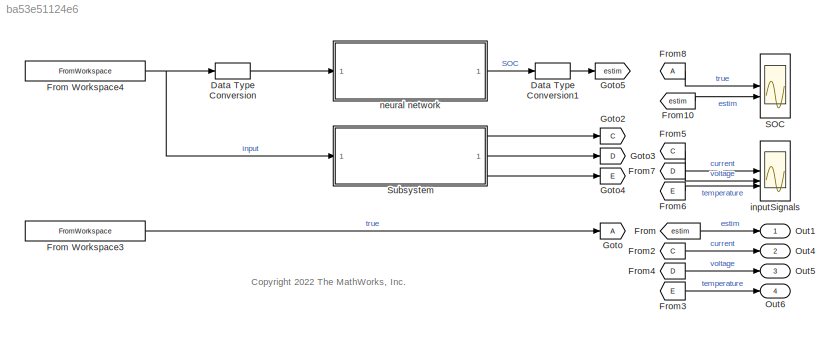
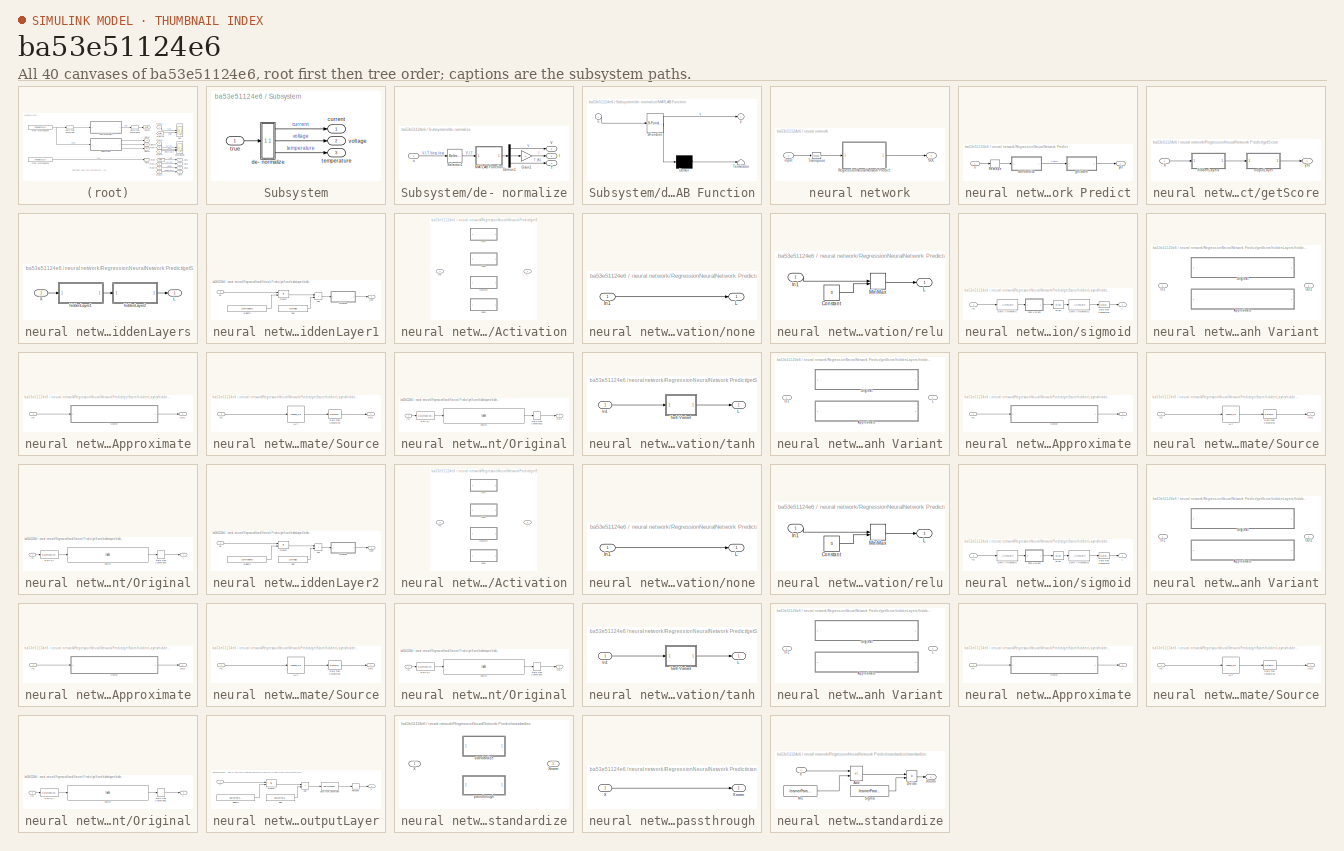
[diagram: thumbnail index - all 40 canvases of the model, root first then tree order]
MODEL slx_ba53e51124e6
KIND model
CONFIG AbsTol = auto
CONFIG EnableMultiTasking = off
CONFIG FixedStep = auto
CONFIG MaxStep = auto
CONFIG MinStep = auto
CONFIG RelTol = 1e-3
CONFIG SampleTimeConstraint = Unconstrained
CONFIG SolverName = VariableStepAuto
CONFIG StartTime = 0.0
CONFIG StopTime = 10.0
BLOCK [DataTypeConversion] Data Type Conversion
  OutDataTypeStr = fixdt(0,14,14)
  RndMeth = Floor
  SaturateOnIntegerOverflow = off
BLOCK [DataTypeConversion] Data Type Conversion1
  RndMeth = Floor
  SaturateOnIntegerOverflow = off
BLOCK [From] From
  GotoTag = estim
BLOCK [FromWorkspace] From Workspace3
  SampleTime = -1
  VariableName = measuredSOC
BLOCK [FromWorkspace] From Workspace4
  SampleTime = -1
  VariableName = input
BLOCK [From] From10
  GotoTag = estim
BLOCK [From] From2
  GotoTag = C
BLOCK [From] From3
  GotoTag = E
BLOCK [From] From4
  GotoTag = D
BLOCK [From] From5
  GotoTag = C
BLOCK [From] From6
  GotoTag = E
BLOCK [From] From7
  GotoTag = D
BLOCK [From] From8
BLOCK [Goto] Goto
BLOCK [Goto] Goto2
  GotoTag = C
BLOCK [Goto] Goto3
  GotoTag = D
BLOCK [Goto] Goto4
  GotoTag = E
BLOCK [Goto] Goto5
  GotoTag = estim
BLOCK [Outport] Out1
BLOCK [Outport] Out4
  Port = 2
BLOCK [Outport] Out5
  Port = 3
BLOCK [Outport] Out6
  Port = 4
BLOCK [Scope] SOC
  Floating = off
  NumInputPorts = 2
  ScopeSpecificationString = Simulink.scopes.TimeScopeBlockCfg('CurrentConfiguration', extmgr.ConfigurationSet(extmgr.Configuration('Core','General UI',true),extmgr.Configuration('Core','Source UI',true),extmgr.Configuration('Sources','WiredSimulink',true,'DataLoggingVariableName','ScopeData1'),extmgr.Configuration('Visuals','Time Domain',true,'SerializedDisplays',{struct('MinYLimReal','0.19312','MaxYLimReal','1.0941','YLabel...<+1464ch>
BLOCK [SubSystem] Subsystem
BLOCK [Outport] Subsystem/current
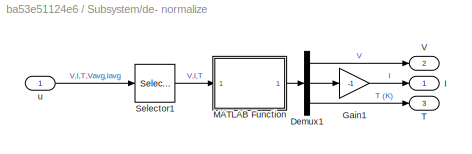
BLOCK [SubSystem] Subsystem/de- normalize
BLOCK [Demux] Subsystem/de- normalize/Demux1
  Outputs = 3
BLOCK [Gain] Subsystem/de- normalize/Gain1
  Gain = -1
BLOCK [Outport] Subsystem/de- normalize/I
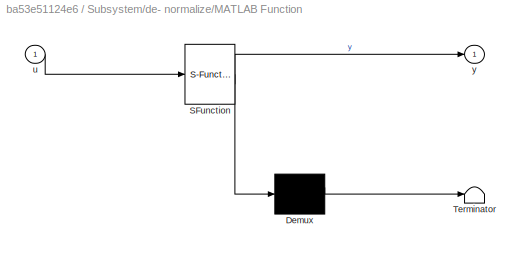
BLOCK [SubSystem] Subsystem/de- normalize/MATLAB Function
  ErrorFcn = Stateflow.Translate.translate
  PermitHierarchicalResolution = ExplicitOnly
  SFBlockType = MATLAB Function
  TreatAsAtomicUnit = on
BLOCK [Demux] Subsystem/de- normalize/MATLAB Function/ Demux 
  Outputs = 1
BLOCK [S-Function] Subsystem/de- normalize/MATLAB Function/ SFunction 
  EnableBusSupport = off
  FunctionName = sf_sfun
  Parameters = X_MAX,X_MIN
  PortCounts = [1 2]
  SFcnIsStateOwnerBlock = off
  SFunctionDeploymentMode = off
  Tag = Stateflow S-Function 3
BLOCK [Terminator] Subsystem/de- normalize/MATLAB Function/ Terminator 
BLOCK [Inport] Subsystem/de- normalize/MATLAB Function/u
BLOCK [Outport] Subsystem/de- normalize/MATLAB Function/y
BLOCK [Selector] Subsystem/de- normalize/Selector1
  IndexOptions = Index vector (dialog)
  Indices = [1 2 3]
  InputPortWidth = 5
  OutputSizes = 1
BLOCK [Outport] Subsystem/de- normalize/T
  Port = 3
BLOCK [Outport] Subsystem/de- normalize/V
  Port = 2
BLOCK [Inport] Subsystem/de- normalize/u
BLOCK [Outport] Subsystem/temperature
  Port = 3
BLOCK [Inport] Subsystem/true
BLOCK [Outport] Subsystem/voltage
  Port = 2
BLOCK [Scope] inputSignals
  Floating = off
  NumInputPorts = 3
  ScopeSpecificationString = Simulink.scopes.TimeScopeBlockCfg('CurrentConfiguration', extmgr.ConfigurationSet(extmgr.Configuration('Core','General UI',true),extmgr.Configuration('Core','Source UI',true),extmgr.Configuration('Sources','WiredSimulink',true),extmgr.Configuration('Visuals','Time Domain',true,'SerializedDisplays',{struct('MinYLimReal','-8.46176','MaxYLimReal','16.17474','YLabelReal','','MinYLimMag','0.00000','Max...<+2728ch>
BLOCK [SubSystem] neural network
  TreatAsAtomicUnit = on
BLOCK [SubSystem] neural network/RegressionNeuralNetwork Predict
  LibrarySourceBlock = statsLibrary/Regression/RegressionNeuralNetwork Predict
  TreatAsAtomicUnit = on
BLOCK [Reshape] neural network/RegressionNeuralNetwork Predict/Reshape
  OutputDimensionality = Row vector (2-D)
BLOCK [SubSystem] neural network/RegressionNeuralNetwork Predict/getScore
BLOCK [Inport] neural network/RegressionNeuralNetwork Predict/getScore/X
BLOCK [SubSystem] neural network/RegressionNeuralNetwork Predict/getScore/hiddenLayers
BLOCK [Outport] neural network/RegressionNeuralNetwork Predict/getScore/hiddenLayers/L
BLOCK [Inport] neural network/RegressionNeuralNetwork Predict/getScore/hiddenLayers/X
BLOCK [SubSystem] neural network/RegressionNeuralNetwork Predict/getScore/hiddenLayers/hiddenLayer1
  LibrarySourceBlock = sharedstatsblks/hiddenLayer
  VariantControl = Relu
BLOCK [SubSystem] neural network/RegressionNeuralNetwork Predict/getScore/hiddenLayers/hiddenLayer1/Activation
  LabelModeActiveChoice = relu
  Variant = on
  VariantControlMode = label
BLOCK [Inport] neural network/RegressionNeuralNetwork Predict/getScore/hiddenLayers/hiddenLayer1/Activation/In1
BLOCK [Outport] neural network/RegressionNeuralNetwork Predict/getScore/hiddenLayers/hiddenLayer1/Activation/L
BLOCK [SubSystem] neural network/RegressionNeuralNetwork Predict/getScore/hiddenLayers/hiddenLayer1/Activation/none
  VariantControl = none
BLOCK [Inport] neural network/RegressionNeuralNetwork Predict/getScore/hiddenLayers/hiddenLayer1/Activation/none/In1
BLOCK [Outport] neural network/RegressionNeuralNetwork Predict/getScore/hiddenLayers/hiddenLayer1/Activation/none/L
BLOCK [SubSystem] neural network/RegressionNeuralNetwork Predict/getScore/hiddenLayers/hiddenLayer1/Activation/relu
  VariantControl = relu
BLOCK [Constant] neural network/RegressionNeuralNetwork Predict/getScore/hiddenLayers/hiddenLayer1/Activation/relu/Constant
  OutDataTypeStr = Inherit: Inherit via back propagation
  Value = 0
BLOCK [Inport] neural network/RegressionNeuralNetwork Predict/getScore/hiddenLayers/hiddenLayer1/Activation/relu/In1
BLOCK [Outport] neural network/RegressionNeuralNetwork Predict/getScore/hiddenLayers/hiddenLayer1/Activation/relu/L
BLOCK [MinMax] neural network/RegressionNeuralNetwork Predict/getScore/hiddenLayers/hiddenLayer1/Activation/relu/MinMax
  Function = max
  Inputs = 2
  OutDataTypeStr = Inherit: Inherit via back propagation
BLOCK [SubSystem] neural network/RegressionNeuralNetwork Predict/getScore/hiddenLayers/hiddenLayer1/Activation/sigmoid
  VariantControl = sigmoid
BLOCK [Bias] neural network/RegressionNeuralNetwork Predict/getScore/hiddenLayers/hiddenLayer1/Activation/sigmoid/Bias
  Bias = 1
  SaturateOnIntegerOverflow = off
BLOCK [DataTypeConversion] neural network/RegressionNeuralNetwork Predict/getScore/hiddenLayers/hiddenLayer1/Activation/sigmoid/Data Type Conversion
  RndMeth = Floor
  SaturateOnIntegerOverflow = off
BLOCK [Inport] neural network/RegressionNeuralNetwork Predict/getScore/hiddenLayers/hiddenLayer1/Activation/sigmoid/In1
BLOCK [Outport] neural network/RegressionNeuralNetwork Predict/getScore/hiddenLayers/hiddenLayer1/Activation/sigmoid/L
BLOCK [ArithShift] neural network/RegressionNeuralNetwork Predict/getScore/hiddenLayers/hiddenLayer1/Activation/sigmoid/Shift Arithmetic
  BitShiftDirection = Right
  BitShiftNumber = 1
  InputPortMap = u0
BLOCK [ArithShift] neural network/RegressionNeuralNetwork Predict/getScore/hiddenLayers/hiddenLayer1/Activation/sigmoid/Shift Arithmetic1
  BitShiftDirection = Right
  BitShiftNumber = 1
  InputPortMap = u0
BLOCK [SubSystem] neural network/RegressionNeuralNetwork Predict/getScore/hiddenLayers/hiddenLayer1/Activation/sigmoid/Tanh Variant
  Variant = on
BLOCK [SubSystem] neural network/RegressionNeuralNetwork Predict/getScore/hiddenLayers/hiddenLayer1/Activation/sigmoid/Tanh Variant/Approximate
  Tag = Approximate
  VariantControl = LearnerParams.IsFxpt
BLOCK [Inport] neural network/RegressionNeuralNetwork Predict/getScore/hiddenLayers/hiddenLayer1/Activation/sigmoid/Tanh Variant/Approximate/In1
BLOCK [Outport] neural network/RegressionNeuralNetwork Predict/getScore/hiddenLayers/hiddenLayer1/Activation/sigmoid/Tanh Variant/Approximate/Out1
BLOCK [SubSystem] neural network/RegressionNeuralNetwork Predict/getScore/hiddenLayers/hiddenLayer1/Activation/sigmoid/Tanh Variant/Approximate/Source
  Description = This block was created using function approximation.
BLOCK [DataTypeConversion] neural network/RegressionNeuralNetwork Predict/getScore/hiddenLayers/hiddenLayer1/Activation/sigmoid/Tanh Variant/Approximate/Source/Data Type Conversion
  RndMeth = Floor
  SaturateOnIntegerOverflow = off
BLOCK [Inport] neural network/RegressionNeuralNetwork Predict/getScore/hiddenLayers/hiddenLayer1/Activation/sigmoid/Tanh Variant/Approximate/Source/In1
BLOCK [Lookup_n-D] neural network/RegressionNeuralNetwork Predict/getScore/hiddenLayers/hiddenLayer1/Activation/sigmoid/Tanh Variant/Approximate/Source/LUT
  BreakpointsForDimension1 = LearnerParams.TanhLUT.BreakPoints
  BreakpointsForDimension1DataTypeStr = numerictype(1,8,5)
  BreakpointsForDimension3 = [5, 7]
  ExtrapMethod = Clip
  InputPortMap = u0
  InputSameDT = off
  InternalRulePriority = Speed
  LookupTableObject = FunctionApproximation_LUTObject_20210329T002800015
  NumberOfTableDimensions = 1
  OutDataTypeStr = numerictype(1,16,14)
  Table = LearnerParams.TanhLUT.TableData
  TableDataTypeStr = numerictype(1,16,15)
  UseLastTableValue = on
BLOCK [Outport] neural network/RegressionNeuralNetwork Predict/getScore/hiddenLayers/hiddenLayer1/Activation/sigmoid/Tanh Variant/Approximate/Source/Out1
BLOCK [Inport] neural network/RegressionNeuralNetwork Predict/getScore/hiddenLayers/hiddenLayer1/Activation/sigmoid/Tanh Variant/In1
BLOCK [SubSystem] neural network/RegressionNeuralNetwork Predict/getScore/hiddenLayers/hiddenLayer1/Activation/sigmoid/Tanh Variant/Original
  Tag = Original
  VariantControl = ~LearnerParams.IsFxpt
BLOCK [DataTypeConversion] neural network/RegressionNeuralNetwork Predict/getScore/hiddenLayers/hiddenLayer1/Activation/sigmoid/Tanh Variant/Original/DTCIn_1
  OutDataTypeStr = double
  RndMeth = Floor
  SaturateOnIntegerOverflow = off
BLOCK [DataTypeConversion] neural network/RegressionNeuralNetwork Predict/getScore/hiddenLayers/hiddenLayer1/Activation/sigmoid/Tanh Variant/Original/Data Type Conversion1
  RndMeth = Floor
  SaturateOnIntegerOverflow = off
BLOCK [Inport] neural network/RegressionNeuralNetwork Predict/getScore/hiddenLayers/hiddenLayer1/Activation/sigmoid/Tanh Variant/Original/In1
BLOCK [Outport] neural network/RegressionNeuralNetwork Predict/getScore/hiddenLayers/hiddenLayer1/Activation/sigmoid/Tanh Variant/Original/Out1
BLOCK [Trigonometry] neural network/RegressionNeuralNetwork Predict/getScore/hiddenLayers/hiddenLayer1/Activation/sigmoid/Tanh Variant/Original/Source
  Operator = tanh
BLOCK [Outport] neural network/RegressionNeuralNetwork Predict/getScore/hiddenLayers/hiddenLayer1/Activation/sigmoid/Tanh Variant/Out1
BLOCK [SubSystem] neural network/RegressionNeuralNetwork Predict/getScore/hiddenLayers/hiddenLayer1/Activation/tanh
  VariantControl = tanh
BLOCK [Inport] neural network/RegressionNeuralNetwork Predict/getScore/hiddenLayers/hiddenLayer1/Activation/tanh/In1
BLOCK [Outport] neural network/RegressionNeuralNetwork Predict/getScore/hiddenLayers/hiddenLayer1/Activation/tanh/L
BLOCK [SubSystem] neural network/RegressionNeuralNetwork Predict/getScore/hiddenLayers/hiddenLayer1/Activation/tanh/Tanh Variant
  Variant = on
BLOCK [SubSystem] neural network/RegressionNeuralNetwork Predict/getScore/hiddenLayers/hiddenLayer1/Activation/tanh/Tanh Variant/Approximate
  Tag = Approximate
  VariantControl = LearnerParams.IsFxpt
BLOCK [Inport] neural network/RegressionNeuralNetwork Predict/getScore/hiddenLayers/hiddenLayer1/Activation/tanh/Tanh Variant/Approximate/In1
BLOCK [Outport] neural network/RegressionNeuralNetwork Predict/getScore/hiddenLayers/hiddenLayer1/Activation/tanh/Tanh Variant/Approximate/L
BLOCK [SubSystem] neural network/RegressionNeuralNetwork Predict/getScore/hiddenLayers/hiddenLayer1/Activation/tanh/Tanh Variant/Approximate/Source
  Description = This block was created using function approximation.
BLOCK [DataTypeConversion] neural network/RegressionNeuralNetwork Predict/getScore/hiddenLayers/hiddenLayer1/Activation/tanh/Tanh Variant/Approximate/Source/Data Type Conversion
  RndMeth = Floor
  SaturateOnIntegerOverflow = off
BLOCK [Inport] neural network/RegressionNeuralNetwork Predict/getScore/hiddenLayers/hiddenLayer1/Activation/tanh/Tanh Variant/Approximate/Source/In1
BLOCK [Lookup_n-D] neural network/RegressionNeuralNetwork Predict/getScore/hiddenLayers/hiddenLayer1/Activation/tanh/Tanh Variant/Approximate/Source/LUT
  BreakpointsForDimension1 = LearnerParams.TanhLUT.BreakPoints
  BreakpointsForDimension1DataTypeStr = numerictype(1,8,5)
  BreakpointsForDimension3 = [5, 7]
  ExtrapMethod = Clip
  InputPortMap = u0
  InputSameDT = off
  InternalRulePriority = Speed
  LookupTableObject = FunctionApproximation_LUTObject_20210329T002800015
  NumberOfTableDimensions = 1
  OutDataTypeStr = numerictype(1,16,15)
  Table = LearnerParams.TanhLUT.TableData
  TableDataTypeStr = numerictype(1,16,15)
  UseLastTableValue = on
BLOCK [Outport] neural network/RegressionNeuralNetwork Predict/getScore/hiddenLayers/hiddenLayer1/Activation/tanh/Tanh Variant/Approximate/Source/Out1
BLOCK [Inport] neural network/RegressionNeuralNetwork Predict/getScore/hiddenLayers/hiddenLayer1/Activation/tanh/Tanh Variant/In1
BLOCK [Outport] neural network/RegressionNeuralNetwork Predict/getScore/hiddenLayers/hiddenLayer1/Activation/tanh/Tanh Variant/L
BLOCK [SubSystem] neural network/RegressionNeuralNetwork Predict/getScore/hiddenLayers/hiddenLayer1/Activation/tanh/Tanh Variant/Original
  Tag = Original
  VariantControl = ~LearnerParams.IsFxpt
BLOCK [DataTypeConversion] neural network/RegressionNeuralNetwork Predict/getScore/hiddenLayers/hiddenLayer1/Activation/tanh/Tanh Variant/Original/DTCIn_1
  OutDataTypeStr = double
  RndMeth = Floor
  SaturateOnIntegerOverflow = off
BLOCK [DataTypeConversion] neural network/RegressionNeuralNetwork Predict/getScore/hiddenLayers/hiddenLayer1/Activation/tanh/Tanh Variant/Original/Data Type Conversion1
  RndMeth = Floor
  SaturateOnIntegerOverflow = off
BLOCK [Inport] neural network/RegressionNeuralNetwork Predict/getScore/hiddenLayers/hiddenLayer1/Activation/tanh/Tanh Variant/Original/In1
BLOCK [Outport] neural network/RegressionNeuralNetwork Predict/getScore/hiddenLayers/hiddenLayer1/Activation/tanh/Tanh Variant/Original/L
BLOCK [Trigonometry] neural network/RegressionNeuralNetwork Predict/getScore/hiddenLayers/hiddenLayer1/Activation/tanh/Tanh Variant/Original/Source
  Operator = tanh
BLOCK [Sum] neural network/RegressionNeuralNetwork Predict/getScore/hiddenLayers/hiddenLayer1/Add
  IconShape = rectangular
  OutDataTypeStr = Layer1AdditionDataTypeStr
  OutMax = AdditionOutMax
  OutMin = AdditionOutMin
BLOCK [Inport] neural network/RegressionNeuralNetwork Predict/getScore/hiddenLayers/hiddenLayer1/Lin
BLOCK [Outport] neural network/RegressionNeuralNetwork Predict/getScore/hiddenLayers/hiddenLayer1/Lout
  OutMax = ActivationOutMax
  OutMin = ActivationOutMin
BLOCK [Product] neural network/RegressionNeuralNetwork Predict/getScore/hiddenLayers/hiddenLayer1/Product
  Multiplication = Matrix(*)
  OutDataTypeStr = Layer1DataTypeStr
  OutMax = LayerProductOutMax
  OutMin = LayerProductOutMin
BLOCK [Constant] neural network/RegressionNeuralNetwork Predict/getScore/hiddenLayers/hiddenLayer1/bias
  Value = LayerBias
BLOCK [Constant] neural network/RegressionNeuralNetwork Predict/getScore/hiddenLayers/hiddenLayer1/weights
  Value = LayerWeights
  VectorParams1D = off
BLOCK [SubSystem] neural network/RegressionNeuralNetwork Predict/getScore/hiddenLayers/hiddenLayer2
  LibrarySourceBlock = sharedstatsblks/hiddenLayer
  VariantControl = Relu
BLOCK [SubSystem] neural network/RegressionNeuralNetwork Predict/getScore/hiddenLayers/hiddenLayer2/Activation
  LabelModeActiveChoice = relu
  Variant = on
  VariantControlMode = label
BLOCK [Inport] neural network/RegressionNeuralNetwork Predict/getScore/hiddenLayers/hiddenLayer2/Activation/In1
BLOCK [Outport] neural network/RegressionNeuralNetwork Predict/getScore/hiddenLayers/hiddenLayer2/Activation/L
BLOCK [SubSystem] neural network/RegressionNeuralNetwork Predict/getScore/hiddenLayers/hiddenLayer2/Activation/none
  VariantControl = none
BLOCK [Inport] neural network/RegressionNeuralNetwork Predict/getScore/hiddenLayers/hiddenLayer2/Activation/none/In1
BLOCK [Outport] neural network/RegressionNeuralNetwork Predict/getScore/hiddenLayers/hiddenLayer2/Activation/none/L
BLOCK [SubSystem] neural network/RegressionNeuralNetwork Predict/getScore/hiddenLayers/hiddenLayer2/Activation/relu
  VariantControl = relu
BLOCK [Constant] neural network/RegressionNeuralNetwork Predict/getScore/hiddenLayers/hiddenLayer2/Activation/relu/Constant
  OutDataTypeStr = Inherit: Inherit via back propagation
  Value = 0
BLOCK [Inport] neural network/RegressionNeuralNetwork Predict/getScore/hiddenLayers/hiddenLayer2/Activation/relu/In1
BLOCK [Outport] neural network/RegressionNeuralNetwork Predict/getScore/hiddenLayers/hiddenLayer2/Activation/relu/L
BLOCK [MinMax] neural network/RegressionNeuralNetwork Predict/getScore/hiddenLayers/hiddenLayer2/Activation/relu/MinMax
  Function = max
  Inputs = 2
  OutDataTypeStr = Inherit: Inherit via back propagation
BLOCK [SubSystem] neural network/RegressionNeuralNetwork Predict/getScore/hiddenLayers/hiddenLayer2/Activation/sigmoid
  VariantControl = sigmoid
BLOCK [Bias] neural network/RegressionNeuralNetwork Predict/getScore/hiddenLayers/hiddenLayer2/Activation/sigmoid/Bias
  Bias = 1
  SaturateOnIntegerOverflow = off
BLOCK [DataTypeConversion] neural network/RegressionNeuralNetwork Predict/getScore/hiddenLayers/hiddenLayer2/Activation/sigmoid/Data Type Conversion
  RndMeth = Floor
  SaturateOnIntegerOverflow = off
BLOCK [Inport] neural network/RegressionNeuralNetwork Predict/getScore/hiddenLayers/hiddenLayer2/Activation/sigmoid/In1
BLOCK [Outport] neural network/RegressionNeuralNetwork Predict/getScore/hiddenLayers/hiddenLayer2/Activation/sigmoid/L
BLOCK [ArithShift] neural network/RegressionNeuralNetwork Predict/getScore/hiddenLayers/hiddenLayer2/Activation/sigmoid/Shift Arithmetic
  BitShiftDirection = Right
  BitShiftNumber = 1
  InputPortMap = u0
BLOCK [ArithShift] neural network/RegressionNeuralNetwork Predict/getScore/hiddenLayers/hiddenLayer2/Activation/sigmoid/Shift Arithmetic1
  BitShiftDirection = Right
  BitShiftNumber = 1
  InputPortMap = u0
BLOCK [SubSystem] neural network/RegressionNeuralNetwork Predict/getScore/hiddenLayers/hiddenLayer2/Activation/sigmoid/Tanh Variant
  Variant = on
BLOCK [SubSystem] neural network/RegressionNeuralNetwork Predict/getScore/hiddenLayers/hiddenLayer2/Activation/sigmoid/Tanh Variant/Approximate
  Tag = Approximate
  VariantControl = LearnerParams.IsFxpt
BLOCK [Inport] neural network/RegressionNeuralNetwork Predict/getScore/hiddenLayers/hiddenLayer2/Activation/sigmoid/Tanh Variant/Approximate/In1
BLOCK [Outport] neural network/RegressionNeuralNetwork Predict/getScore/hiddenLayers/hiddenLayer2/Activation/sigmoid/Tanh Variant/Approximate/Out1
BLOCK [SubSystem] neural network/RegressionNeuralNetwork Predict/getScore/hiddenLayers/hiddenLayer2/Activation/sigmoid/Tanh Variant/Approximate/Source
  Description = This block was created using function approximation.
BLOCK [DataTypeConversion] neural network/RegressionNeuralNetwork Predict/getScore/hiddenLayers/hiddenLayer2/Activation/sigmoid/Tanh Variant/Approximate/Source/Data Type Conversion
  RndMeth = Floor
  SaturateOnIntegerOverflow = off
BLOCK [Inport] neural network/RegressionNeuralNetwork Predict/getScore/hiddenLayers/hiddenLayer2/Activation/sigmoid/Tanh Variant/Approximate/Source/In1
BLOCK [Lookup_n-D] neural network/RegressionNeuralNetwork Predict/getScore/hiddenLayers/hiddenLayer2/Activation/sigmoid/Tanh Variant/Approximate/Source/LUT
  BreakpointsForDimension1 = LearnerParams.TanhLUT.BreakPoints
  BreakpointsForDimension1DataTypeStr = numerictype(1,8,5)
  BreakpointsForDimension3 = [5, 7]
  ExtrapMethod = Clip
  InputPortMap = u0
  InputSameDT = off
  InternalRulePriority = Speed
  LookupTableObject = FunctionApproximation_LUTObject_20210329T002800015
  NumberOfTableDimensions = 1
  OutDataTypeStr = numerictype(1,16,14)
  Table = LearnerParams.TanhLUT.TableData
  TableDataTypeStr = numerictype(1,16,15)
  UseLastTableValue = on
BLOCK [Outport] neural network/RegressionNeuralNetwork Predict/getScore/hiddenLayers/hiddenLayer2/Activation/sigmoid/Tanh Variant/Approximate/Source/Out1
BLOCK [Inport] neural network/RegressionNeuralNetwork Predict/getScore/hiddenLayers/hiddenLayer2/Activation/sigmoid/Tanh Variant/In1
BLOCK [SubSystem] neural network/RegressionNeuralNetwork Predict/getScore/hiddenLayers/hiddenLayer2/Activation/sigmoid/Tanh Variant/Original
  Tag = Original
  VariantControl = ~LearnerParams.IsFxpt
BLOCK [DataTypeConversion] neural network/RegressionNeuralNetwork Predict/getScore/hiddenLayers/hiddenLayer2/Activation/sigmoid/Tanh Variant/Original/DTCIn_1
  OutDataTypeStr = double
  RndMeth = Floor
  SaturateOnIntegerOverflow = off
BLOCK [DataTypeConversion] neural network/RegressionNeuralNetwork Predict/getScore/hiddenLayers/hiddenLayer2/Activation/sigmoid/Tanh Variant/Original/Data Type Conversion1
  RndMeth = Floor
  SaturateOnIntegerOverflow = off
BLOCK [Inport] neural network/RegressionNeuralNetwork Predict/getScore/hiddenLayers/hiddenLayer2/Activation/sigmoid/Tanh Variant/Original/In1
BLOCK [Outport] neural network/RegressionNeuralNetwork Predict/getScore/hiddenLayers/hiddenLayer2/Activation/sigmoid/Tanh Variant/Original/Out1
BLOCK [Trigonometry] neural network/RegressionNeuralNetwork Predict/getScore/hiddenLayers/hiddenLayer2/Activation/sigmoid/Tanh Variant/Original/Source
  Operator = tanh
BLOCK [Outport] neural network/RegressionNeuralNetwork Predict/getScore/hiddenLayers/hiddenLayer2/Activation/sigmoid/Tanh Variant/Out1
BLOCK [SubSystem] neural network/RegressionNeuralNetwork Predict/getScore/hiddenLayers/hiddenLayer2/Activation/tanh
  VariantControl = tanh
BLOCK [Inport] neural network/RegressionNeuralNetwork Predict/getScore/hiddenLayers/hiddenLayer2/Activation/tanh/In1
BLOCK [Outport] neural network/RegressionNeuralNetwork Predict/getScore/hiddenLayers/hiddenLayer2/Activation/tanh/L
BLOCK [SubSystem] neural network/RegressionNeuralNetwork Predict/getScore/hiddenLayers/hiddenLayer2/Activation/tanh/Tanh Variant
  Variant = on
BLOCK [SubSystem] neural network/RegressionNeuralNetwork Predict/getScore/hiddenLayers/hiddenLayer2/Activation/tanh/Tanh Variant/Approximate
  Tag = Approximate
  VariantControl = LearnerParams.IsFxpt
BLOCK [Inport] neural network/RegressionNeuralNetwork Predict/getScore/hiddenLayers/hiddenLayer2/Activation/tanh/Tanh Variant/Approximate/In1
BLOCK [Outport] neural network/RegressionNeuralNetwork Predict/getScore/hiddenLayers/hiddenLayer2/Activation/tanh/Tanh Variant/Approximate/L
BLOCK [SubSystem] neural network/RegressionNeuralNetwork Predict/getScore/hiddenLayers/hiddenLayer2/Activation/tanh/Tanh Variant/Approximate/Source
  Description = This block was created using function approximation.
BLOCK [DataTypeConversion] neural network/RegressionNeuralNetwork Predict/getScore/hiddenLayers/hiddenLayer2/Activation/tanh/Tanh Variant/Approximate/Source/Data Type Conversion
  RndMeth = Floor
  SaturateOnIntegerOverflow = off
BLOCK [Inport] neural network/RegressionNeuralNetwork Predict/getScore/hiddenLayers/hiddenLayer2/Activation/tanh/Tanh Variant/Approximate/Source/In1
BLOCK [Lookup_n-D] neural network/RegressionNeuralNetwork Predict/getScore/hiddenLayers/hiddenLayer2/Activation/tanh/Tanh Variant/Approximate/Source/LUT
  BreakpointsForDimension1 = LearnerParams.TanhLUT.BreakPoints
  BreakpointsForDimension1DataTypeStr = numerictype(1,8,5)
  BreakpointsForDimension3 = [5, 7]
  ExtrapMethod = Clip
  InputPortMap = u0
  InputSameDT = off
  InternalRulePriority = Speed
  LookupTableObject = FunctionApproximation_LUTObject_20210329T002800015
  NumberOfTableDimensions = 1
  OutDataTypeStr = numerictype(1,16,15)
  Table = LearnerParams.TanhLUT.TableData
  TableDataTypeStr = numerictype(1,16,15)
  UseLastTableValue = on
BLOCK [Outport] neural network/RegressionNeuralNetwork Predict/getScore/hiddenLayers/hiddenLayer2/Activation/tanh/Tanh Variant/Approximate/Source/Out1
BLOCK [Inport] neural network/RegressionNeuralNetwork Predict/getScore/hiddenLayers/hiddenLayer2/Activation/tanh/Tanh Variant/In1
BLOCK [Outport] neural network/RegressionNeuralNetwork Predict/getScore/hiddenLayers/hiddenLayer2/Activation/tanh/Tanh Variant/L
BLOCK [SubSystem] neural network/RegressionNeuralNetwork Predict/getScore/hiddenLayers/hiddenLayer2/Activation/tanh/Tanh Variant/Original
  Tag = Original
  VariantControl = ~LearnerParams.IsFxpt
BLOCK [DataTypeConversion] neural network/RegressionNeuralNetwork Predict/getScore/hiddenLayers/hiddenLayer2/Activation/tanh/Tanh Variant/Original/DTCIn_1
  OutDataTypeStr = double
  RndMeth = Floor
  SaturateOnIntegerOverflow = off
BLOCK [DataTypeConversion] neural network/RegressionNeuralNetwork Predict/getScore/hiddenLayers/hiddenLayer2/Activation/tanh/Tanh Variant/Original/Data Type Conversion1
  RndMeth = Floor
  SaturateOnIntegerOverflow = off
BLOCK [Inport] neural network/RegressionNeuralNetwork Predict/getScore/hiddenLayers/hiddenLayer2/Activation/tanh/Tanh Variant/Original/In1
BLOCK [Outport] neural network/RegressionNeuralNetwork Predict/getScore/hiddenLayers/hiddenLayer2/Activation/tanh/Tanh Variant/Original/L
BLOCK [Trigonometry] neural network/RegressionNeuralNetwork Predict/getScore/hiddenLayers/hiddenLayer2/Activation/tanh/Tanh Variant/Original/Source
  Operator = tanh
BLOCK [Sum] neural network/RegressionNeuralNetwork Predict/getScore/hiddenLayers/hiddenLayer2/Add
  IconShape = rectangular
  OutDataTypeStr = Layer2AdditionDataTypeStr
  OutMax = AdditionOutMax
  OutMin = AdditionOutMin
BLOCK [Inport] neural network/RegressionNeuralNetwork Predict/getScore/hiddenLayers/hiddenLayer2/Lin
BLOCK [Outport] neural network/RegressionNeuralNetwork Predict/getScore/hiddenLayers/hiddenLayer2/Lout
  OutMax = ActivationOutMax
  OutMin = ActivationOutMin
BLOCK [Product] neural network/RegressionNeuralNetwork Predict/getScore/hiddenLayers/hiddenLayer2/Product
  Multiplication = Matrix(*)
  OutDataTypeStr = Layer2DataTypeStr
  OutMax = LayerProductOutMax
  OutMin = LayerProductOutMin
BLOCK [Constant] neural network/RegressionNeuralNetwork Predict/getScore/hiddenLayers/hiddenLayer2/bias
  Value = LayerBias
BLOCK [Constant] neural network/RegressionNeuralNetwork Predict/getScore/hiddenLayers/hiddenLayer2/weights
  Value = LayerWeights
  VectorParams1D = off
BLOCK [SubSystem] neural network/RegressionNeuralNetwork Predict/getScore/outputLayer
BLOCK [Sum] neural network/RegressionNeuralNetwork Predict/getScore/outputLayer/Add
  IconShape = rectangular
  OutDataTypeStr = OutputLayerAdditionDataTypeStr
  OutMax = OutputLayerAdditionOutMax
  OutMin = OutputLayerAdditionOutMin
BLOCK [DataTypeConversion] neural network/RegressionNeuralNetwork Predict/getScore/outputLayer/Data Type Conversion
  RndMeth = Floor
  SaturateOnIntegerOverflow = off
BLOCK [Outport] neural network/RegressionNeuralNetwork Predict/getScore/outputLayer/L
BLOCK [Product] neural network/RegressionNeuralNetwork Predict/getScore/outputLayer/Product
  Multiplication = Matrix(*)
  OutDataTypeStr = OutputLayerDataTypeStr
  OutMax = OutputLayerOutMax
  OutMin = OutputLayerOutMin
BLOCK [Reshape] neural network/RegressionNeuralNetwork Predict/getScore/outputLayer/Reshape
BLOCK [Inport] neural network/RegressionNeuralNetwork Predict/getScore/outputLayer/X
BLOCK [Constant] neural network/RegressionNeuralNetwork Predict/getScore/outputLayer/bias
  Value = learnerParams.BiasOut
BLOCK [Constant] neural network/RegressionNeuralNetwork Predict/getScore/outputLayer/weights
  Value = learnerParams.PredictWeightsOut
BLOCK [Outport] neural network/RegressionNeuralNetwork Predict/getScore/yfit
BLOCK [SubSystem] neural network/RegressionNeuralNetwork Predict/standardize
  Variant = on
BLOCK [Inport] neural network/RegressionNeuralNetwork Predict/standardize/X
  PortDimensions = [1,learnerParams.NumPredictors]
BLOCK [Outport] neural network/RegressionNeuralNetwork Predict/standardize/Xnorm
BLOCK [SubSystem] neural network/RegressionNeuralNetwork Predict/standardize/passthrough
  VariantControl = ~learnerParams.doNormalize
BLOCK [Inport] neural network/RegressionNeuralNetwork Predict/standardize/passthrough/X
BLOCK [Outport] neural network/RegressionNeuralNetwork Predict/standardize/passthrough/Xnorm
BLOCK [SubSystem] neural network/RegressionNeuralNetwork Predict/standardize/standardize
  VariantControl = learnerParams.doNormalize
BLOCK [Sum] neural network/RegressionNeuralNetwork Predict/standardize/standardize/Add
  IconShape = rectangular
  Inputs = +-
BLOCK [Product] neural network/RegressionNeuralNetwork Predict/standardize/standardize/Divide
  Inputs = */
  OutDataTypeStr = StandardizedInputDataTypeStr
  OutMax = StandardizedInputOutMax
  OutMin = StandardizedInputOutMin
BLOCK [Constant] neural network/RegressionNeuralNetwork Predict/standardize/standardize/Mu
  Value = learnerParams.Mu
  VectorParams1D = off
BLOCK [Constant] neural network/RegressionNeuralNetwork Predict/standardize/standardize/Sigma
  Value = learnerParams.Sigma
BLOCK [Inport] neural network/RegressionNeuralNetwork Predict/standardize/standardize/X
BLOCK [Outport] neural network/RegressionNeuralNetwork Predict/standardize/standardize/Xnorm
  VectorParamsAs1DForOutWhenUnconnected = off
BLOCK [Inport] neural network/RegressionNeuralNetwork Predict/x
BLOCK [Outport] neural network/RegressionNeuralNetwork Predict/yfit
  OutDataTypeStr = OutDataTypeStr
  OutMax = OutMax
  OutMin = OutMin
  VectorParamsAs1DForOutWhenUnconnected = off
BLOCK [Outport] neural network/SOC
  OutDataTypeStr = fixdt(0,14,13)
  SampleTime = 10
BLOCK [Math] neural network/Transpose
  Operator = transpose
  OutDataTypeStr = double
BLOCK [Inport] neural network/input
  OutDataTypeStr = fixdt(0,14,14)
  PortDimensions = [5]
  SampleTime = 10
ANNOTATION (root): <copyright redacted>
LINE Data Type Conversion1:1 -> Goto5:1
LINE Data Type Conversion:1 -> neural network:1
LINE From Workspace3:1 -> Goto:1
NET From Workspace4:1 -> Data Type Conversion:1, Subsystem:1
LINE From10:1 -> SOC:2
LINE From2:1 -> Out4:1
LINE From3:1 -> Out6:1
LINE From4:1 -> Out5:1
LINE From5:1 -> inputSignals:1
LINE From6:1 -> inputSignals:3
LINE From7:1 -> inputSignals:2
LINE From8:1 -> SOC:1
LINE From:1 -> Out1:1
LINE Subsystem/de- normalize/Demux1:1 -> Subsystem/de- normalize/V:1
LINE Subsystem/de- normalize/Demux1:2 -> Subsystem/de- normalize/Gain1:1
LINE Subsystem/de- normalize/Demux1:3 -> Subsystem/de- normalize/T:1
LINE Subsystem/de- normalize/Gain1:1 -> Subsystem/de- normalize/I:1
LINE Subsystem/de- normalize/MATLAB Function:1 -> Subsystem/de- normalize/Demux1:1
LINE Subsystem/de- normalize/Selector1:1 -> Subsystem/de- normalize/MATLAB Function:1
LINE Subsystem/de- normalize/u:1 -> Subsystem/de- normalize/Selector1:1
LINE Subsystem/de- normalize:1 -> Subsystem/current:1
LINE Subsystem/de- normalize:2 -> Subsystem/voltage:1
LINE Subsystem/de- normalize:3 -> Subsystem/temperature:1
LINE Subsystem/true:1 -> Subsystem/de- normalize:1
LINE Subsystem:1 -> Goto2:1
LINE Subsystem:2 -> Goto3:1
LINE Subsystem:3 -> Goto4:1
LINE neural network/RegressionNeuralNetwork Predict:1 -> neural network/SOC:1
LINE neural network/Transpose:1 -> neural network/RegressionNeuralNetwork Predict:1
LINE neural network/input:1 -> neural network/Transpose:1
LINE neural network:1 -> Data Type Conversion1:1
note: NET lines group one-source signal fan-out (src -> all destinations, sorted); 1:1 wires keep LINE
CHART Subsystem/de-
normalize/MATLAB Function states=1 transitions=1
  STATE_LABEL 'eML_blk_kernel()'
  STATE_LABEL 'SCRIPT:\nfunction y = fcn(u, X_MAX, X_MIN)\ny = (X_MAX-X_MIN).*u+X_MIN;\ny(3) = y(3) + 273.15; % convert to K\n'
CHART  states=0 transitions=0
